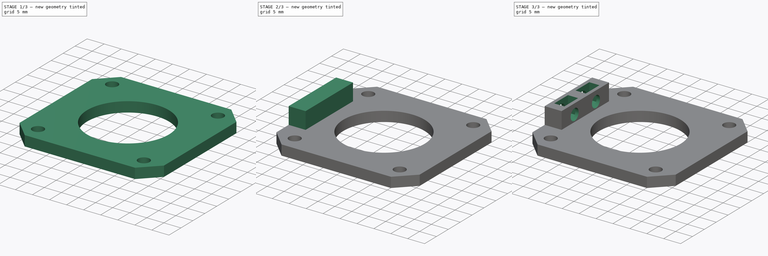
[diagram: build sequence overview — one tinted view per stage of 3, left to right]
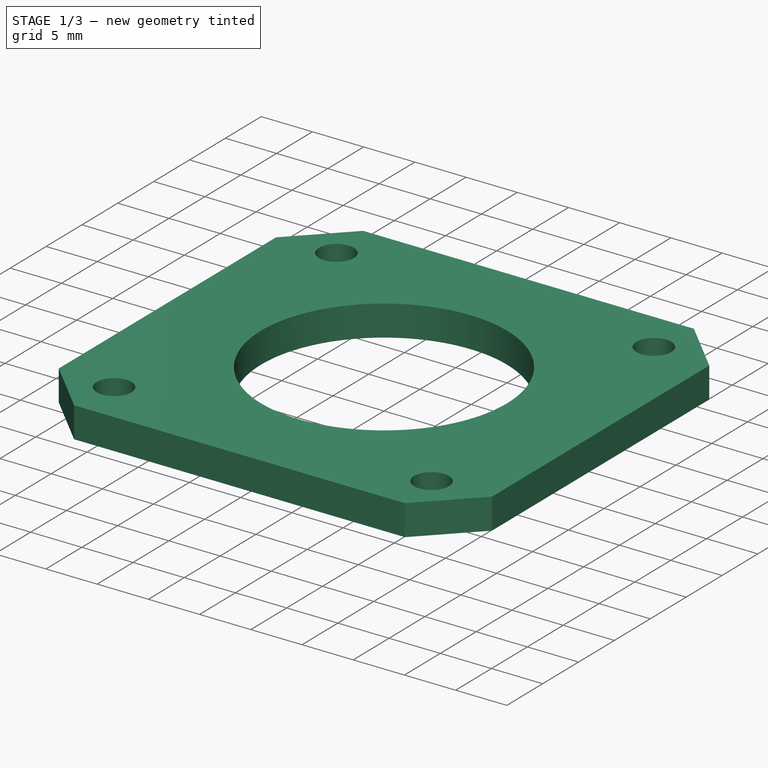
[diagram: stage 1 of 3 — iso view after this stage's code; geometry added in this stage tinted green]
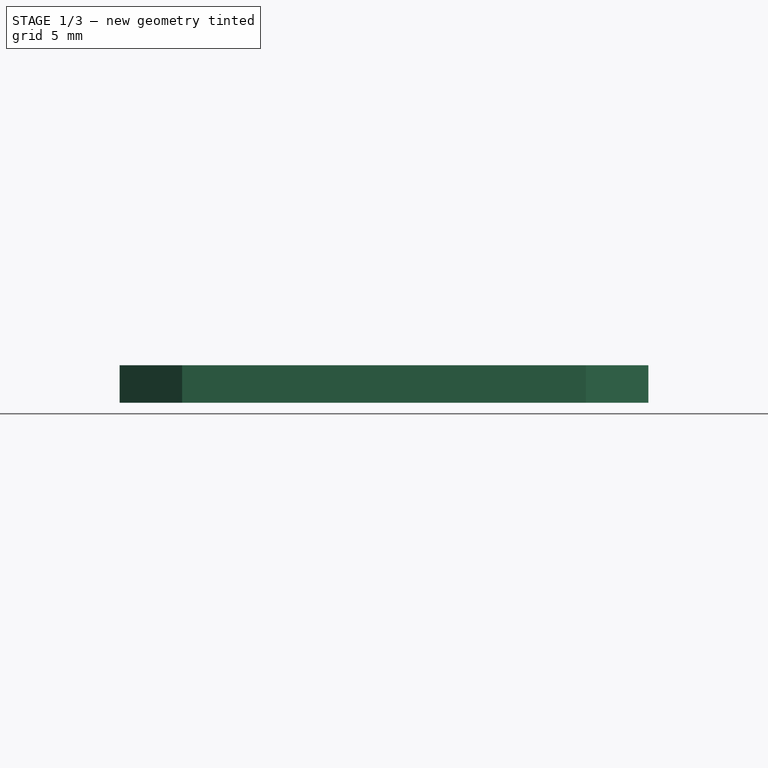
[diagram: stage 1 of 3 — front view after this stage's code; geometry added in this stage tinted green]
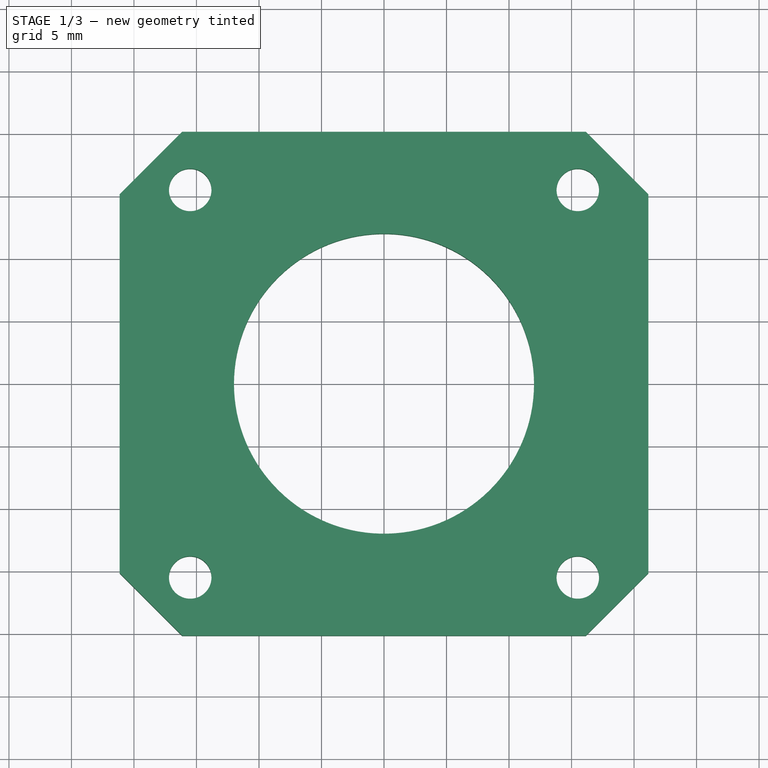
[diagram: stage 1 of 3 — top view after this stage's code; geometry added in this stage tinted green]
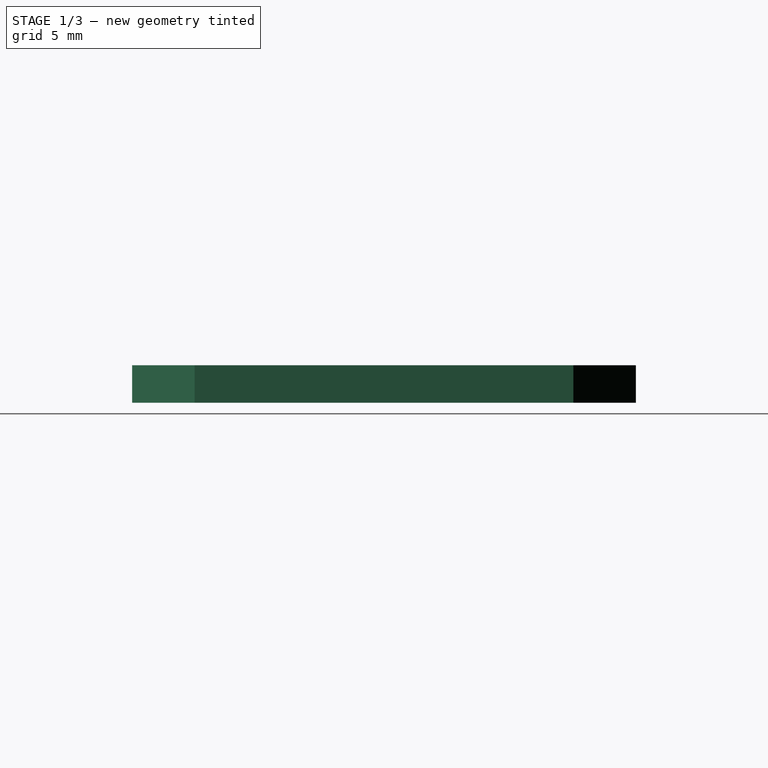
[diagram: stage 1 of 3 — right view after this stage's code; geometry added in this stage tinted green]
FCSTD DOCUMENT  (FreeCAD 0.19R24276 (Git))
Label: Art4MotorFix
License: All rights reserved
LicenseURL: http://en.wikipedia.org/wiki/All_rights_reserved
objects: PartDesign::Line×6, Sketcher::SketchObject×4, PartDesign::Pad×2, PartDesign::Pocket×2, PartDesign::CoordinateSystem×2, Spreadsheet::Sheet×1, PartDesign::Chamfer×1, PartDesign::Plane×1, PartDesign::Body×1
note: 24 computed .brp shape members not serialized (recipe doc carries the construction recipe); baked Part::Feature solids carry a one-line shape summary decoded from their .brp

FEATURE [Sketcher::SketchObject] Sketch
  FullyConstrained = true
  MapMode = 5
  Support = -> [XY_Plane]
  expr: Constraints[28] = Spreadsheet.M3BoltBodyRadius
  sketch-geometry (13):
    g0: LineSegment StartX=-21.15 StartY=20.15 StartZ=0 EndX=21.15 EndY=20.15 EndZ=0
    g1: LineSegment StartX=21.15 StartY=20.15 StartZ=0 EndX=21.15 EndY=-20.15 EndZ=0
    g2: LineSegment StartX=21.15 StartY=-20.15 StartZ=0 EndX=-21.15 EndY=-20.15 EndZ=0
    g3: LineSegment StartX=-21.15 StartY=-20.15 StartZ=0 EndX=-21.15 EndY=20.15 EndZ=0
    g4: Circle CenterX=0 CenterY=0 CenterZ=0 NormalX=0 NormalY=0 NormalZ=1 AngleXU=0 Radius=12
    g5: LineSegment StartX=-15.5 StartY=15.5 StartZ=0 EndX=15.5 EndY=15.5 EndZ=0
    g6: LineSegment StartX=15.5 StartY=15.5 StartZ=0 EndX=15.5 EndY=-15.5 EndZ=0
    g7: LineSegment StartX=15.5 StartY=-15.5 StartZ=0 EndX=-15.5 EndY=-15.5 EndZ=0
    g8: LineSegment StartX=-15.5 StartY=-15.5 StartZ=0 EndX=-15.5 EndY=15.5 EndZ=0
    g9: Circle CenterX=-15.5 CenterY=15.5 CenterZ=0 NormalX=0 NormalY=0 NormalZ=1 AngleXU=0 Radius=1.7
    g10: Circle CenterX=-15.5 CenterY=-15.5 CenterZ=0 NormalX=0 NormalY=0 NormalZ=1 AngleXU=0 Radius=1.7
    g11: Circle CenterX=15.5 CenterY=-15.5 CenterZ=0 NormalX=0 NormalY=0 NormalZ=1 AngleXU=0 Radius=1.7
    g12: Circle CenterX=15.5 CenterY=15.5 CenterZ=0 NormalX=0 NormalY=0 NormalZ=1 AngleXU=0 Radius=1.7
  constraints (30):
    c: Coincident(g0,g1)
    c: Coincident(g1,g2)
    c: Coincident(g2,g3)
    c: Coincident(g3,g0)
    c: Horizontal(g0)
    c: Vertical(g3)
    c: DistanceX(g2,g2) = 42.3
    c: DistanceY(g1,g1) = 40.3
    c: Symmetric(g1,g0,g-1)
    c: Symmetric(g1,g2,g-2)
    c: Coincident(g4,g-1)
    c: Coincident(g5,g6)
    c: Coincident(g6,g7)
    c: Coincident(g7,g8)
    c: Coincident(g8,g5)
    c: Horizontal(g7)
    c: Vertical(g6)
    c: Equal(g8,g5)
    c: DistanceX(g5,g5) = 31
    c: Symmetric(g5,g5,g-2)
    c: Symmetric(g5,g7,g-1)
    c: Coincident(g9,g5)
    c: Coincident(g10,g7)
    c: Coincident(g11,g6)
    c: Coincident(g12,g5)
    c: Equal(g9,g10)
    c: Equal(g10,g12)
    c: Equal(g12,g11)
    c: Radius(g10) = 1.7
    c: Radius(g4) = 12
FEATURE [Spreadsheet::Sheet] Spreadsheet
  cells = A2=M3BoltBodyRadius; B2(M3BoltBodyRadius)=1.7; A3=M3BoltHeadRadius; B3(M3BoltHeadRadius)=2.95; A4=M3NutCircumradius; B4(M3NutCircumradius)=3.35; A5=M3NutThickness; B5(M3NutThickness)=3; A6=Bearing655ZZBodyRadius; B6(Bearing655ZZBodyRadius)=8.199999999999999; A7=MagnetRadius; B7(MagnetRadius)=4.2; A8=MagnetThickness; B8(MagnetThickness)=1.1; A9=M2BoltBodyRadius; B9(M2BoltBodyRadius)=1.2; A10=M2BoltHeadRadius; B10(M2BoltHeadRadius)=2.1
FEATURE [PartDesign::Pad] Pad
  Direction = (1,1,1)
  Length = 3
  Length2 = 100
  Profile = -> Sketch
  Refine = true
  Type = 0
FEATURE [PartDesign::Chamfer] Chamfer
  Angle = 45
  Base = -> Pad [Edge5,Edge8,Edge2,Edge1]
  BaseFeature = -> Pad
  ChamferType = 0
  FlipDirection = false
  Refine = true
  Size = 5
  Size2 = 1
  SupportTransform = false
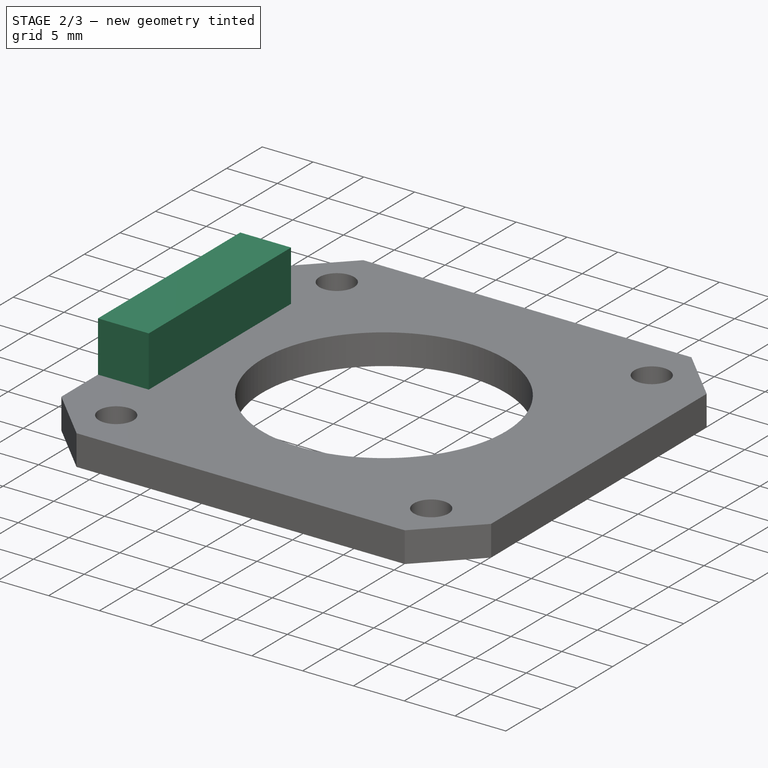
[diagram: stage 2 of 3 — iso view after this stage's code; geometry added in this stage tinted green]
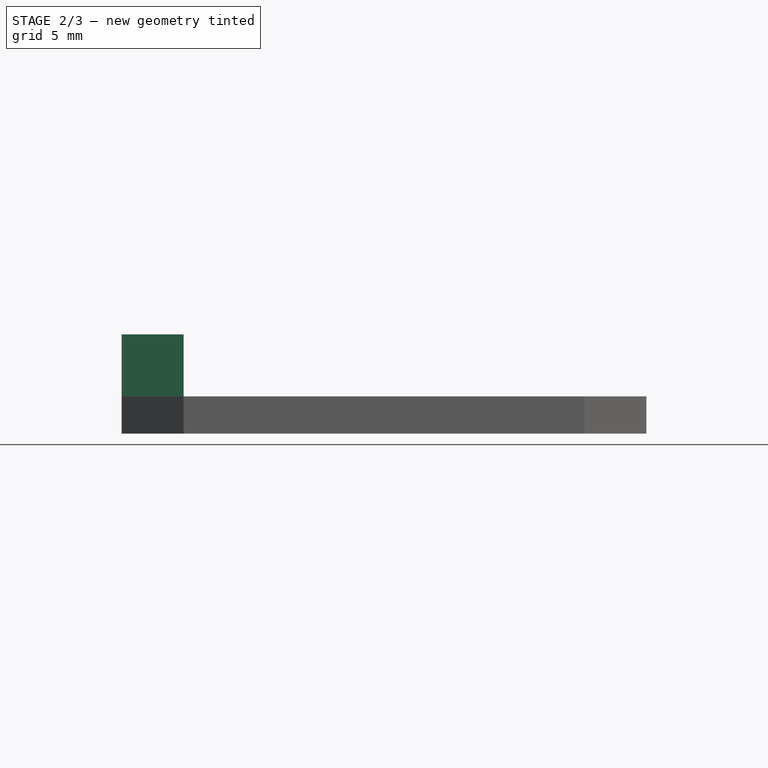
[diagram: stage 2 of 3 — front view after this stage's code; geometry added in this stage tinted green]
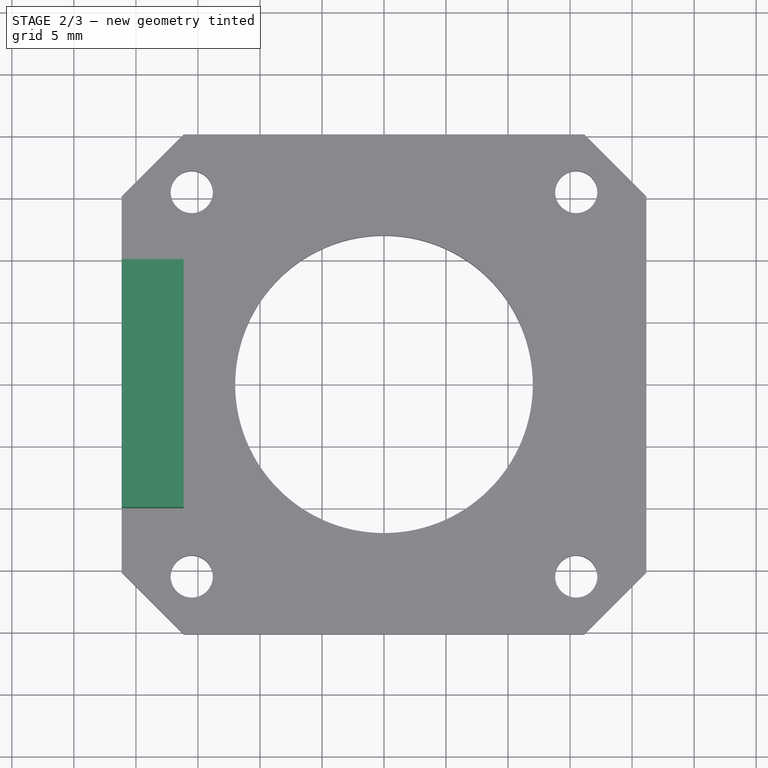
[diagram: stage 2 of 3 — top view after this stage's code; geometry added in this stage tinted green]
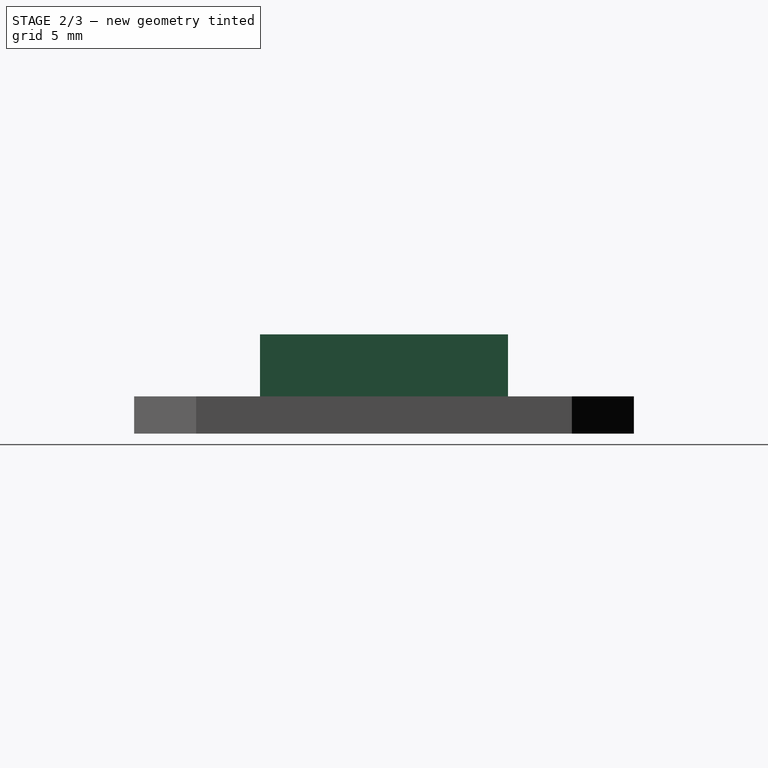
[diagram: stage 2 of 3 — right view after this stage's code; geometry added in this stage tinted green]
FEATURE [Sketcher::SketchObject] Sketch001
  ExternalGeometry = -> [Chamfer]
  FullyConstrained = true
  MapMode = 5
  Placement = pos=(0,0,3) rot=(0,0,1;0rad)
  Support = -> [Chamfer]
  sketch-geometry (4):
    g0: LineSegment StartX=-21.15 StartY=10 StartZ=0 EndX=-16.15 EndY=10 EndZ=0
    g1: LineSegment StartX=-16.15 StartY=10 StartZ=0 EndX=-16.15 EndY=-10 EndZ=0
    g2: LineSegment StartX=-16.15 StartY=-10 StartZ=0 EndX=-21.15 EndY=-10 EndZ=0
    g3: LineSegment StartX=-21.15 StartY=-10 StartZ=0 EndX=-21.15 EndY=10 EndZ=0
  constraints (11):
    c: Coincident(g0,g1)
    c: Coincident(g1,g2)
    c: Coincident(g2,g3)
    c: Coincident(g3,g0)
    c: Horizontal(g0)
    c: Horizontal(g2)
    c: Vertical(g3)
    c: Symmetric(g1,g0,g-1)
    c: DistanceY(g1,g1) = 20
    c: PointOnObject(g0,g-3)
    c: DistanceX(g2,g2) = 5
FEATURE [PartDesign::Pad] Pad001
  BaseFeature = -> Chamfer
  Direction = (1,1,1)
  Length = 5
  Length2 = 100
  Profile = -> Sketch001
  Refine = true
  Type = 0
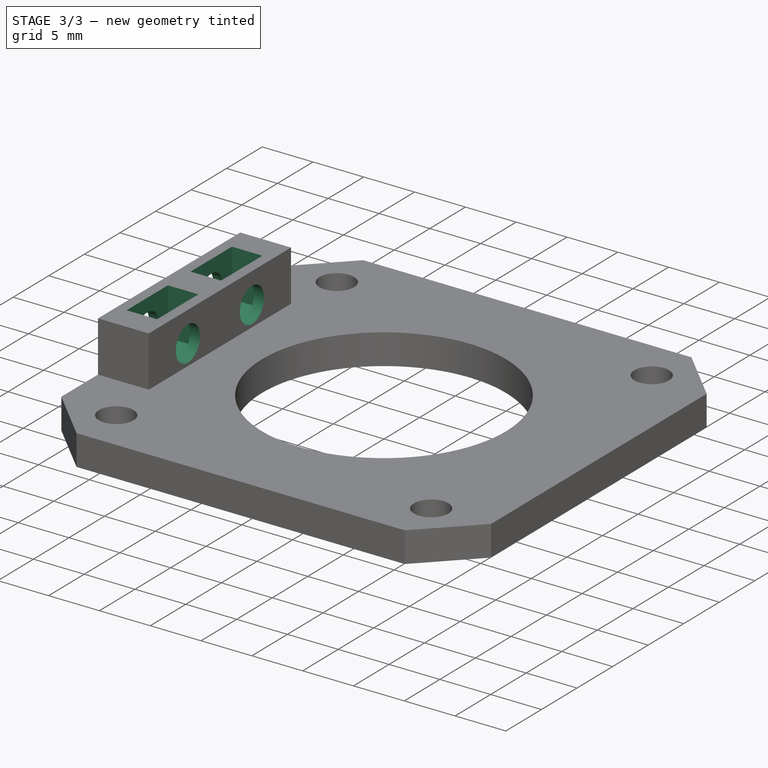
[diagram: stage 3 of 3 — iso view after this stage's code; geometry added in this stage tinted green]
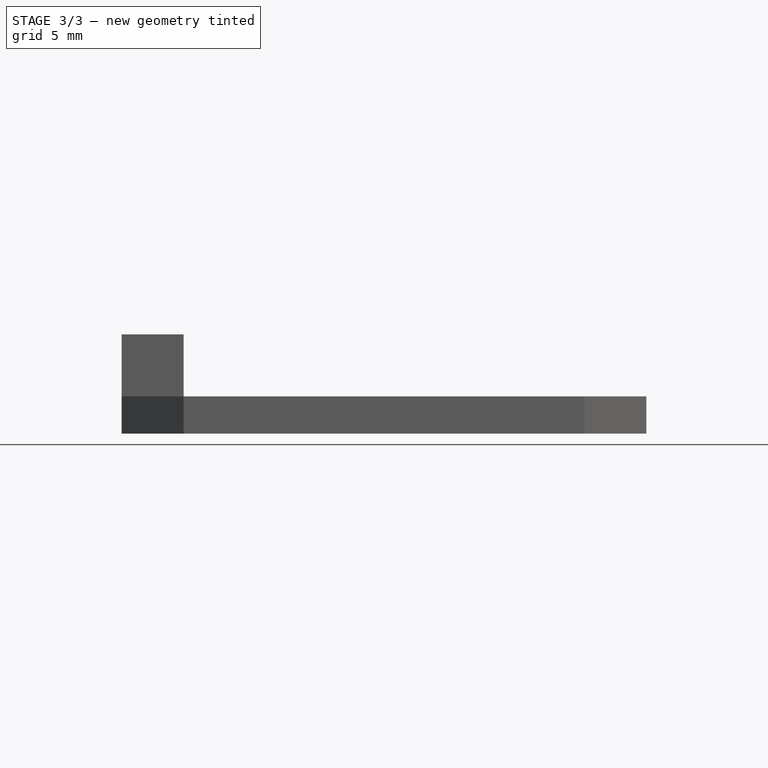
[diagram: stage 3 of 3 — front view after this stage's code; geometry added in this stage tinted green]
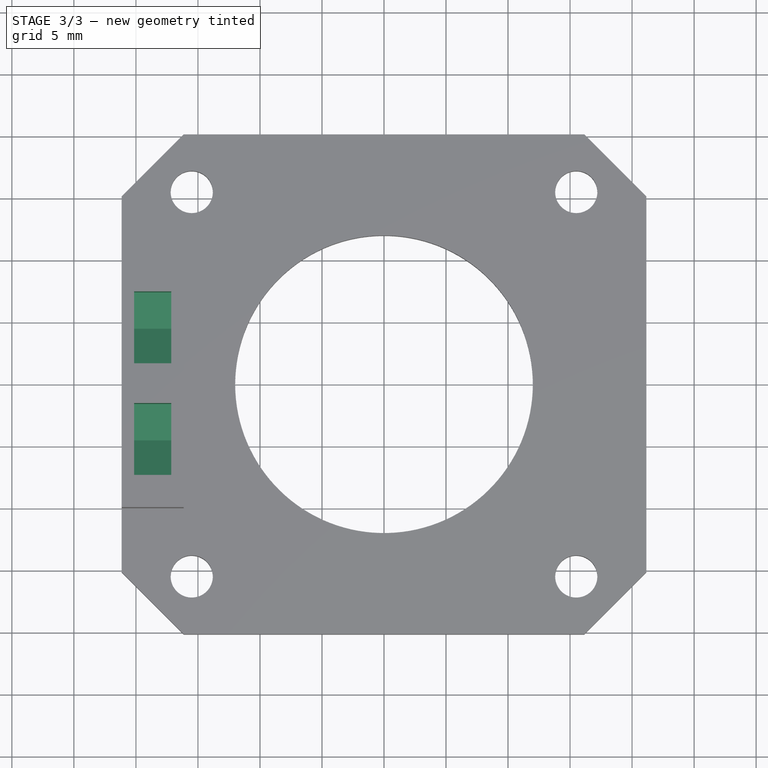
[diagram: stage 3 of 3 — top view after this stage's code; geometry added in this stage tinted green]
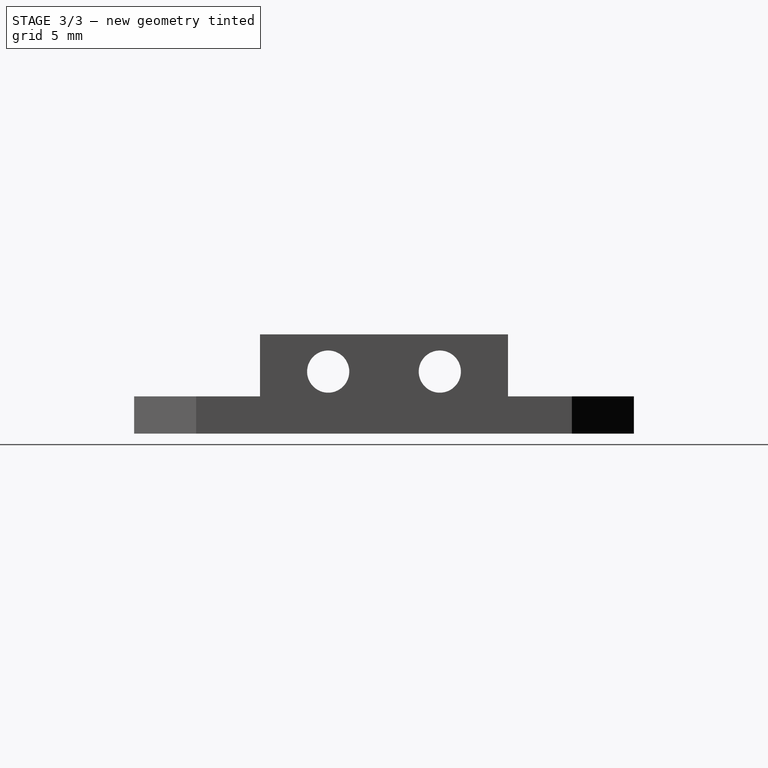
[diagram: stage 3 of 3 — right view after this stage's code; geometry added in this stage tinted green]
FEATURE [Sketcher::SketchObject] Sketch002
  FullyConstrained = true
  MapMode = 5
  Placement = pos=(-21.15,0,-9.5e-15) rot=(0.57735,-0.57735,-0.57735;2.0944rad)
  Support = -> [Pad001]
  expr: Constraints[2] = Spreadsheet.M3BoltBodyRadius
  sketch-geometry (2):
    g0: Circle CenterX=-4.5 CenterY=5 CenterZ=0 NormalX=0 NormalY=0 NormalZ=1 AngleXU=0 Radius=1.7
    g1: Circle CenterX=4.5 CenterY=5 CenterZ=0 NormalX=0 NormalY=0 NormalZ=1 AngleXU=0 Radius=1.7
  constraints (5):
    c: Equal(g0,g1)
    c: Symmetric(g1,g0,g-2)
    c: Radius(g0) = 1.7
    c: DistanceY(g-1,g1) = 5
    c: DistanceX(g0,g1) = 9
FEATURE [PartDesign::Pocket] Pocket
  BaseFeature = -> Pad001
  Length = 5
  Length2 = 100
  Profile = -> Sketch002
  Refine = true
  Type = 1
FEATURE [PartDesign::Plane] DatumPlane
  AttachmentOffset = pos=(0,0,-2.5) rot=(0,0,1;0rad)
  Length = 60
  MapMode = 5
  Placement = pos=(-18.65,0,-8.4e-15) rot=(0.57735,-0.57735,-0.57735;2.0944rad)
  ResizeMode = 0
  Support = -> [Pocket]
  Width = 60
FEATURE [Sketcher::SketchObject] Sketch003
  ExternalGeometry = -> [Pocket]
  FullyConstrained = true
  MapMode = 5
  Placement = pos=(-18.65,0,-8.4e-15) rot=(0.57735,-0.57735,-0.57735;2.0944rad)
  Support = -> [DatumPlane]
  expr: Constraints[55] = Spreadsheet.M3NutCircumradius
  sketch-geometry (20):
    g0: LineSegment StartX=4.5 StartY=1.65 StartZ=0 EndX=7.40119 EndY=3.325 EndZ=0
    g1: LineSegment StartX=7.40119 StartY=3.325 StartZ=0 EndX=7.40119 EndY=6.675 EndZ=0
    g2: LineSegment StartX=7.40119 StartY=6.675 StartZ=0 EndX=4.5 EndY=8.35 EndZ=0
    g3: LineSegment StartX=4.5 StartY=8.35 StartZ=0 EndX=1.59881 EndY=6.675 EndZ=0
    g4: LineSegment StartX=1.59881 StartY=6.675 StartZ=0 EndX=1.59881 EndY=3.325 EndZ=0
    g5: LineSegment StartX=1.59881 StartY=3.325 StartZ=0 EndX=4.5 EndY=1.65 EndZ=0
    g6: Circle CenterX=4.5 CenterY=5 CenterZ=0 NormalX=0 NormalY=0 NormalZ=1 AngleXU=0 Radius=3.35
    g7: LineSegment StartX=-4.5 StartY=1.65 StartZ=0 EndX=-1.59881 EndY=3.325 EndZ=0
    g8: LineSegment StartX=-1.59881 StartY=3.325 StartZ=0 EndX=-1.59881 EndY=6.675 EndZ=0
    g9: LineSegment StartX=-1.59881 StartY=6.675 StartZ=0 EndX=-4.5 EndY=8.35 EndZ=0
    g10: LineSegment StartX=-4.5 StartY=8.35 StartZ=0 EndX=-7.40119 EndY=6.675 EndZ=0
    g11: LineSegment StartX=-7.40119 StartY=6.675 StartZ=0 EndX=-7.40119 EndY=3.325 EndZ=0
    g12: LineSegment StartX=-7.40119 StartY=3.325 StartZ=0 EndX=-4.5 EndY=1.65 EndZ=0
    g13: Circle CenterX=-4.5 CenterY=5 CenterZ=0 NormalX=0 NormalY=0 NormalZ=1 AngleXU=0 Radius=3.35
    g14: LineSegment StartX=7.40119 StartY=3.325 StartZ=0 EndX=7.40119 EndY=13.325 EndZ=0
    g15: LineSegment StartX=7.40119 StartY=13.325 StartZ=0 EndX=1.59881 EndY=13.325 EndZ=0
    g16: LineSegment StartX=1.59881 StartY=13.325 StartZ=0 EndX=1.59881 EndY=3.325 EndZ=0
    g17: LineSegment StartX=-1.59881 StartY=3.325 StartZ=0 EndX=-1.59881 EndY=13.325 EndZ=0
    g18: LineSegment StartX=-1.59881 StartY=13.325 StartZ=0 EndX=-7.40119 EndY=13.325 EndZ=0
    g19: LineSegment StartX=-7.40119 StartY=13.325 StartZ=0 EndX=-7.40119 EndY=3.325 EndZ=0
  constraints (48):
    c: Coincident(g0,g1)
    c: Coincident(g1,g2)
    c: Coincident(g2,g3)
    c: Coincident(g3,g4)
    c: Coincident(g4,g5)
    c: Coincident(g5,g0)
    c: Equal(g0, g1-g5) x5
    c: PointOnObject(g0,g6)
    c: PointOnObject(g1,g6)
    c: PointOnObject(g2,g6)
    c: PointOnObject(g3,g6)
    c: PointOnObject(g4,g6)
    c: PointOnObject(g5,g6)
    c: Coincident(g6,g-3)
    c: Coincident(g7,g8)
    c: Coincident(g8,g9)
    c: Coincident(g9,g10)
    c: Coincident(g10,g11)
    c: Coincident(g11,g12)
    c: Coincident(g12,g7)
    c: Equal(g7, g8-g12) x5
    c: PointOnObject(g7,g13)
    c: PointOnObject(g8,g13)
    c: PointOnObject(g9,g13)
    c: PointOnObject(g10,g13)
    c: PointOnObject(g11,g13)
    c: PointOnObject(g12,g13)
    c: Coincident(g13,g-4)
    c: Vertical(g8)
    c: Vertical(g4)
    c: Coincident(g0,g14)
    c: Vertical(g14)
    c: Coincident(g14,g15)
    c: Horizontal(g15)
    c: Coincident(g15,g16)
    c: Coincident(g16,g5)
    c: Vertical(g16)
    c: Coincident(g7,g17)
    c: Vertical(g17)
    c: Coincident(g17,g18)
    c: Horizontal(g18)
    c: Coincident(g18,g19)
    c: Coincident(g19,g12)
    c: Vertical(g19)
    c: Equal(g17,g16)
    c: DistanceY(g17,g17) = 10
    c: Equal(g13,g6)
    c: Radius(g6) = 3.35
FEATURE [PartDesign::Pocket] Pocket001
  BaseFeature = -> Pocket
  Length = 3
  Length2 = 100
  Midplane = true
  Profile = -> Sketch003
  Refine = true
  Type = 0
  expr: Length = Spreadsheet.M3NutThickness
FEATURE [PartDesign::CoordinateSystem] LCS_Art4MotorFix
  AttacherType = Attacher::AttachEngine3D
  MapMode = 45
  Placement = pos=(-21.15,-9e-15,5) rot=(0.707107,0,0.707107;3.14159rad)
  Support = -> [Pocket001]
FEATURE [PartDesign::CoordinateSystem] LCS_Art4Motor
  AttacherType = Attacher::AttachEngine3D
  Support = -> [Pocket001]
FEATURE [PartDesign::Line] HoleAxis_1
  AttacherType = Attacher::AttachEngineLine
  Length = 4.79083
  MapMode = 19
  Placement = pos=(-15.5,-15.5,3) rot=(0,0,1;0rad)
  ResizeMode = 1
  Support = -> [Pocket001]
FEATURE [PartDesign::Line] HoleAxis_2
  AttacherType = Attacher::AttachEngineLine
  Length = 4.79083
  MapMode = 19
  Placement = pos=(-20.15,-4.5,5) rot=(0.57735,-0.57735,-0.57735;2.0944rad)
  ResizeMode = 1
  Support = -> [Pocket001]
FEATURE [PartDesign::Line] HoleAxis_3
  AttacherType = Attacher::AttachEngineLine
  Length = 4.79083
  MapMode = 19
  Placement = pos=(-20.15,4.5,5) rot=(0.57735,-0.57735,-0.57735;2.0944rad)
  ResizeMode = 1
  Support = -> [Pocket001]
FEATURE [PartDesign::Line] HoleAxis_4
  AttacherType = Attacher::AttachEngineLine
  Length = 4.79083
  MapMode = 19
  Placement = pos=(-15.5,15.5,3) rot=(0,0,1;0rad)
  ResizeMode = 1
  Support = -> [Pocket001]
FEATURE [PartDesign::Line] HoleAxis_5
  AttacherType = Attacher::AttachEngineLine
  Length = 4.79083
  MapMode = 19
  Placement = pos=(15.5,15.5,3) rot=(0,0,1;0rad)
  ResizeMode = 1
  Support = -> [Pocket001]
FEATURE [PartDesign::Line] HoleAxis_6
  AttacherType = Attacher::AttachEngineLine
  Length = 4.79083
  MapMode = 19
  Placement = pos=(15.5,-15.5,3) rot=(0,0,1;0rad)
  ResizeMode = 1
  Support = -> [Pocket001]
FEATURE [PartDesign::Body] Body  label="Art4MotorFix"
  Group = -> [Sketch,Pad,Chamfer,Sketch001,Pad001,Sketch002,Pocket,DatumPlane,Sketch003,Pocket001,LCS_Art4MotorFix,LCS_Art4Motor,HoleAxis_1,HoleAxis_2,HoleAxis_3,HoleAxis_4,HoleAxis_5,HoleAxis_6]
  Origin = -> Origin
  Tip = -> Pocket001
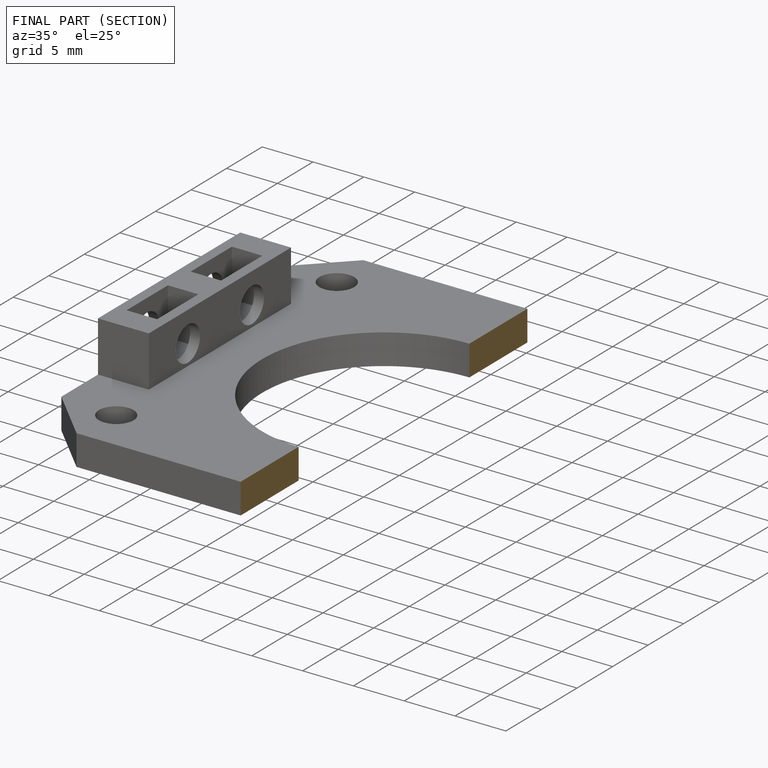
[diagram: finished part — half-section view (interior)]
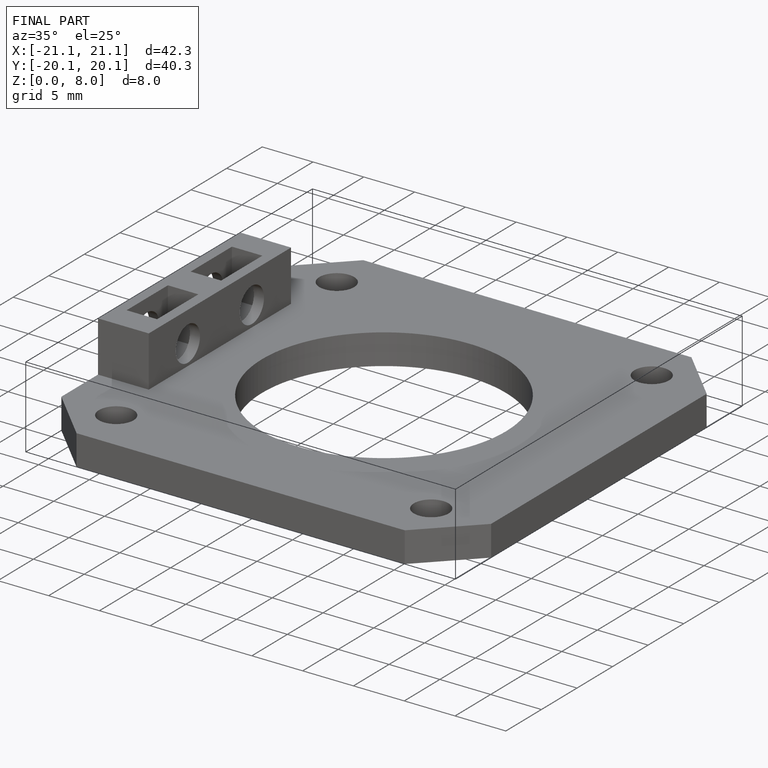
[diagram: finished part — iso view with bounding-box wireframe]
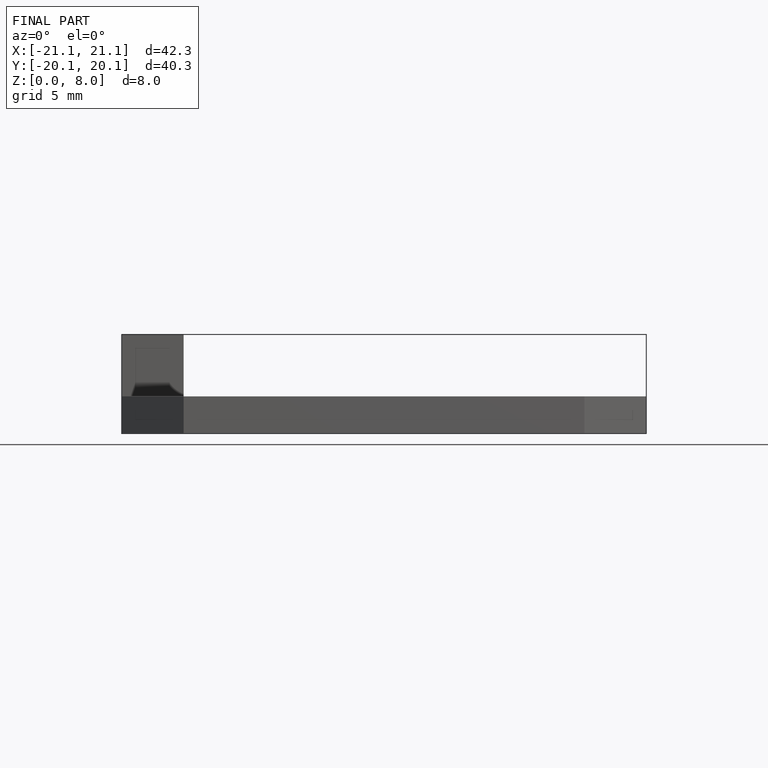
[diagram: finished part — front view with bounding-box wireframe]
